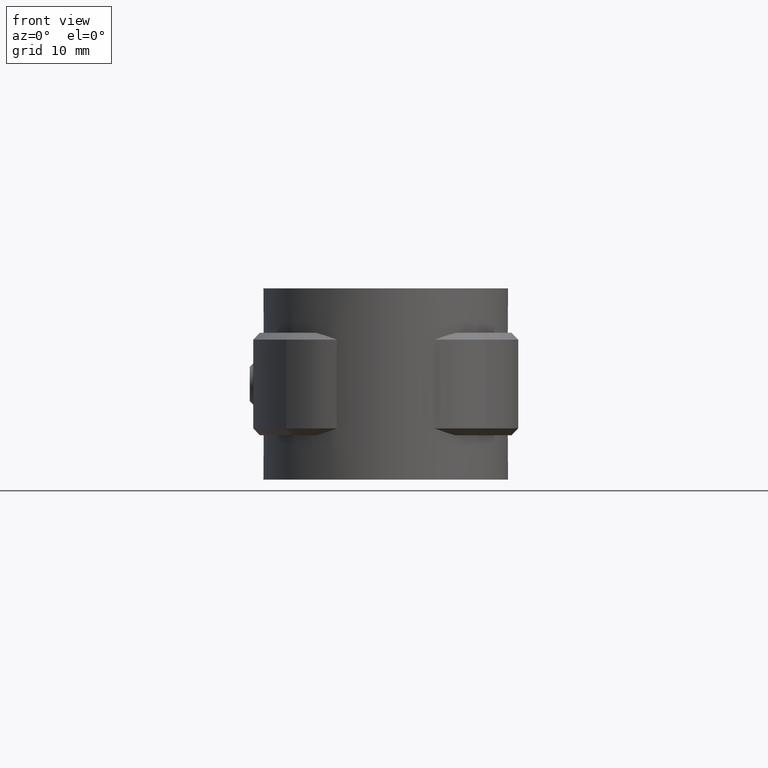
[diagram: clean part render]
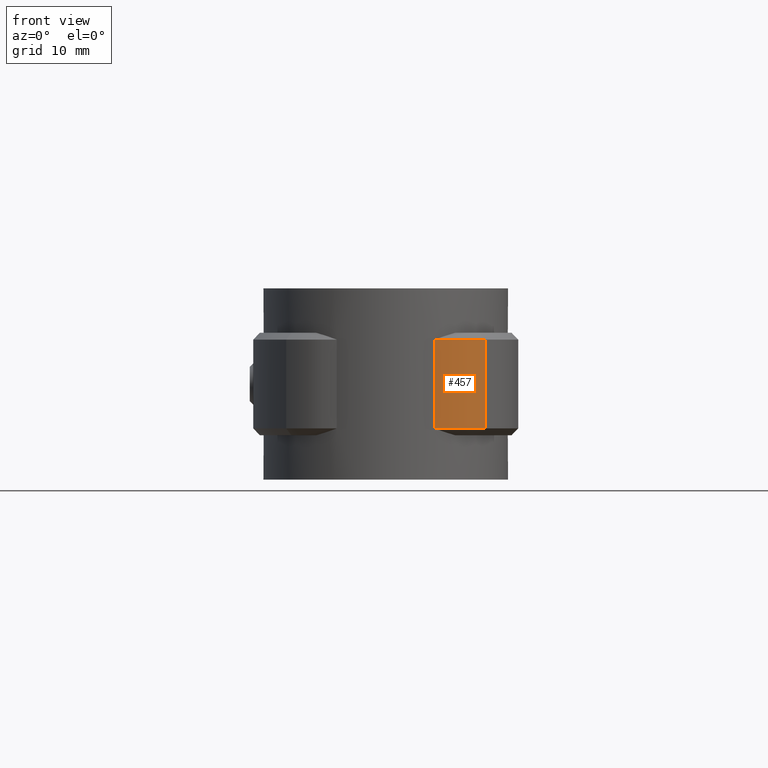
[diagram: same view with one face highlighted and labeled with its STEP entity id]
A machine part, front view. The second image highlights one B-rep face of the part: STEP entity #457.
In plain terms, the highlighted cylindrical surface (partial cylindrical patch) has radius 10.6 mm, axis along (0, 0, 1).
Its self-contained STEP definition (entity closure, byte-faithful):
#457 = ADVANCED_FACE( '', ( #885 ), #886, .T. );
#885 = FACE_OUTER_BOUND( '', #1870, .T. );
#886 = CYLINDRICAL_SURFACE( '', #1871, 10.6000000000000 );
#1870 = EDGE_LOOP( '', ( #4067, #4068, #4069, #4070 ) );
#1871 = AXIS2_PLACEMENT_3D( '', #4071, #4072, #4073 );
#4067 = ORIENTED_EDGE( '', *, *, #6298, .T. );
#4068 = ORIENTED_EDGE( '', *, *, #6282, .T. );
#4069 = ORIENTED_EDGE( '', *, *, #6270, .F. );
#4070 = ORIENTED_EDGE( '', *, *, #6286, .T. );
#4071 = CARTESIAN_POINT( '', ( 6.61812783194765, -5.85300000000000, -20.0000000000000 ) );
#4072 = DIRECTION( '', ( 0.000000000000000, 0.000000000000000, 1.00000000000000 ) );
#4073 = DIRECTION( '', ( 0.262413172112169, 0.964955608876403, 0.000000000000000 ) );
#6270 = EDGE_CURVE( '', #7392, #7394, #7395, .F. );
#6282 = EDGE_CURVE( '', #7409, #7394, #7411, .T. );
#6286 = EDGE_CURVE( '', #7392, #7416, #7418, .T. );
#6298 = EDGE_CURVE( '', #7416, #7409, #7434, .T. );
#7392 = VERTEX_POINT( '', #10432 );
#7394 = VERTEX_POINT( '', #10437 );
#7395 = LINE( '', #10438, #10439 );
#7409 = VERTEX_POINT( '', #10465 );
#7411 = CIRCLE( '', #10468, 10.6000000000000 );
#7416 = VERTEX_POINT( '', #10476 );
#7418 = CIRCLE( '', #10479, 10.6000000000000 );
#7434 = LINE( '', #10505, #10506 );
#10432 = CARTESIAN_POINT( '', ( 7.17213575351335, -16.4385125158323, -19.0000000000000 ) );
#10437 = CARTESIAN_POINT( '', ( 7.17213575351335, -16.4385125158323, -6.00000000000000 ) );
#10438 = CARTESIAN_POINT( '', ( 7.17213575351335, -16.4385125158323, -1.81903103690928E-011 ) );
#10439 = VECTOR( '', #12321, 1000.00000000000 );
#10465 = CARTESIAN_POINT( '', ( 14.5583830689193, -12.8752750424448, -5.99999999999999 ) );
#10468 = AXIS2_PLACEMENT_3D( '', #12335, #12336, #12337 );
#10476 = CARTESIAN_POINT( '', ( 14.5583830689193, -12.8752750424448, -19.0000000000000 ) );
#10479 = AXIS2_PLACEMENT_3D( '', #12342, #12343, #12344 );
#10505 = CARTESIAN_POINT( '', ( 14.5583830689193, -12.8752750424448, -20.0000000000000 ) );
#10506 = VECTOR( '', #12361, 1000.00000000000 );
#12321 = DIRECTION( '', ( 0.000000000000000, 0.000000000000000, -1.00000000000000 ) );
#12335 = CARTESIAN_POINT( '', ( 6.61812783194765, -5.85300000000000, -6.00000000000000 ) );
#12336 = DIRECTION( '', ( 0.000000000000000, 0.000000000000000, -1.00000000000000 ) );
#12337 = DIRECTION( '', ( -1.00000000000000, 0.000000000000000, 0.000000000000000 ) );
#12342 = CARTESIAN_POINT( '', ( 6.61812783194765, -5.85300000000000, -19.0000000000000 ) );
#12343 = DIRECTION( '', ( 0.000000000000000, 0.000000000000000, 1.00000000000000 ) );
#12344 = DIRECTION( '', ( 1.00000000000000, 0.000000000000000, 0.000000000000000 ) );
#12361 = DIRECTION( '', ( 0.000000000000000, 0.000000000000000, 1.00000000000000 ) );